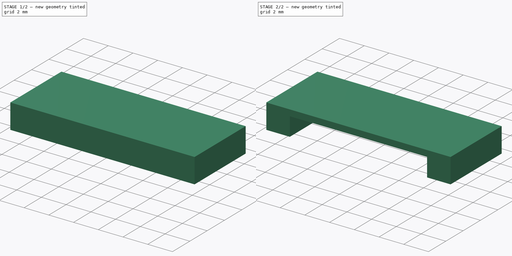
[diagram: build sequence overview — one tinted view per stage of 2, left to right]
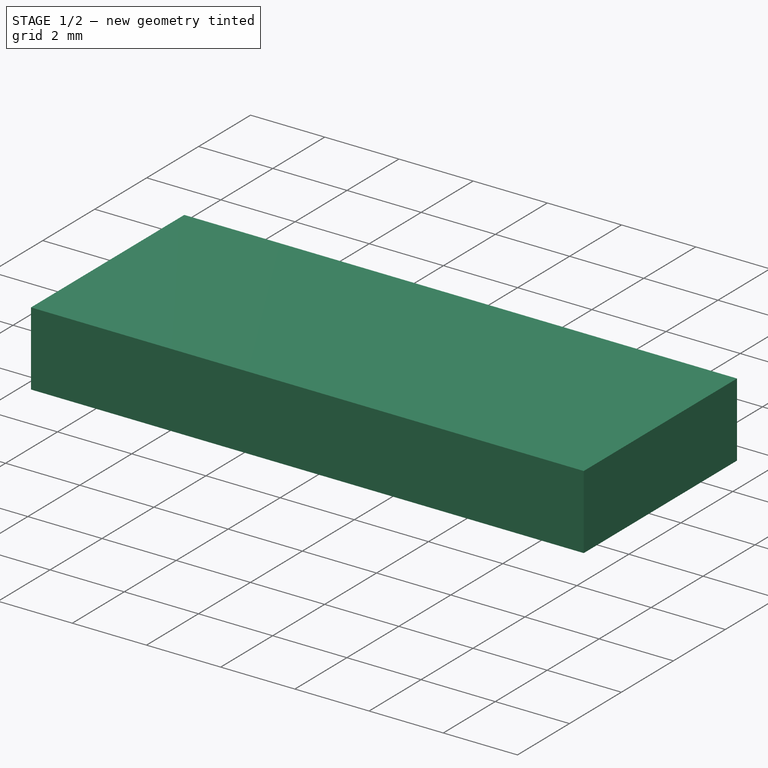
[diagram: stage 1 of 2 — iso view after this stage's code; geometry added in this stage tinted green]
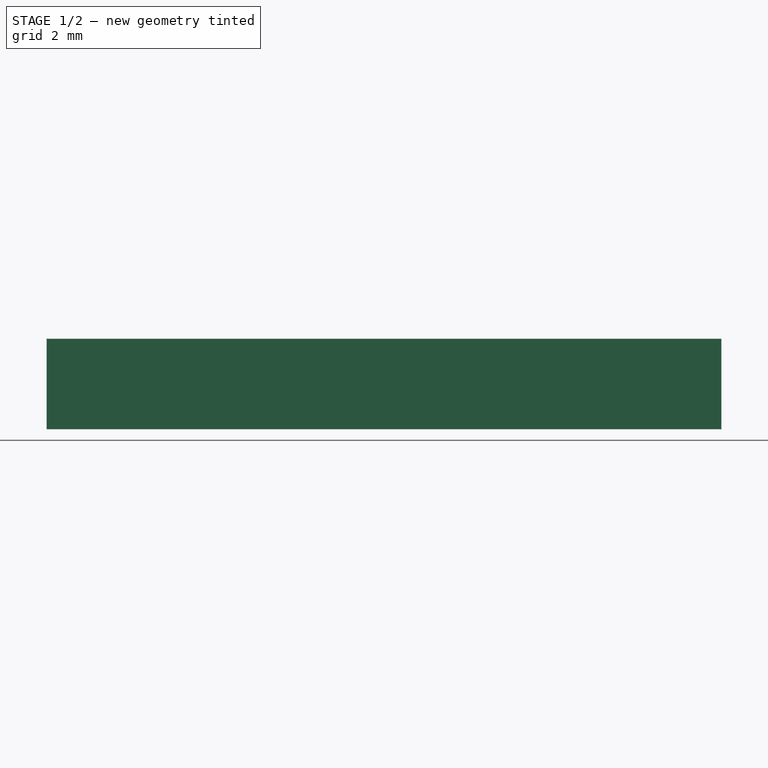
[diagram: stage 1 of 2 — front view after this stage's code; geometry added in this stage tinted green]
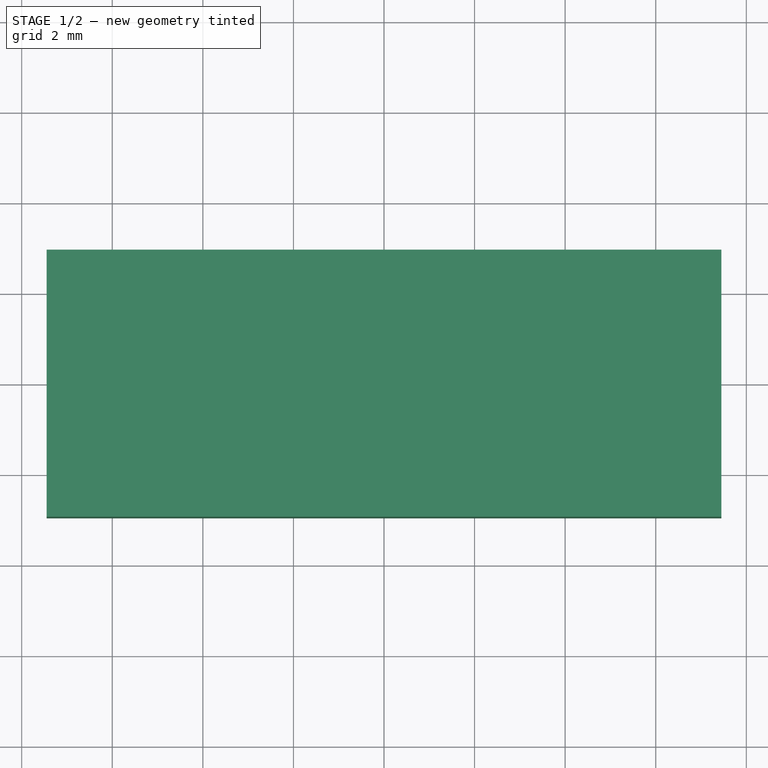
[diagram: stage 1 of 2 — top view after this stage's code; geometry added in this stage tinted green]
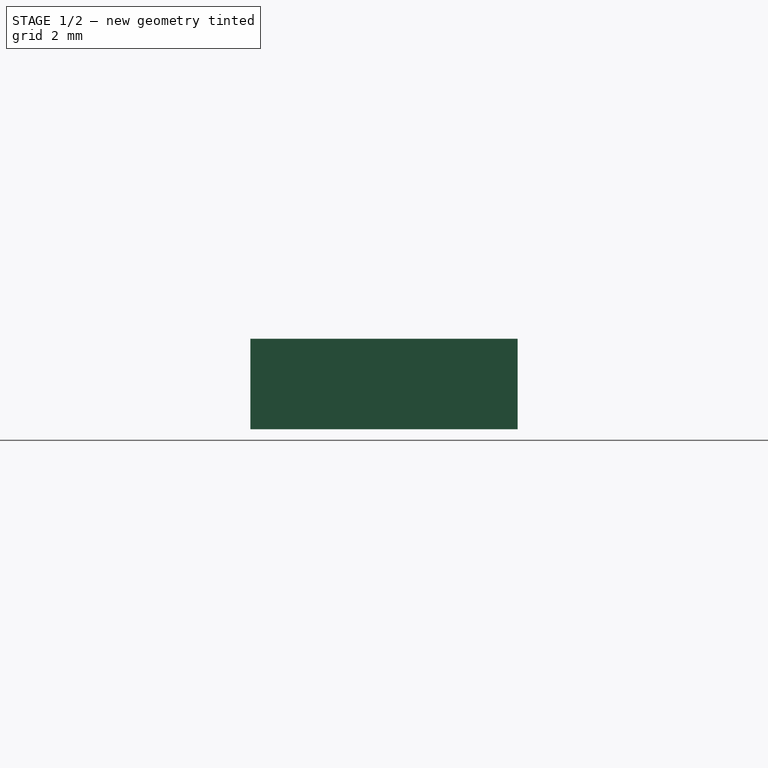
[diagram: stage 1 of 2 — right view after this stage's code; geometry added in this stage tinted green]
FCSTD DOCUMENT  (FreeCAD 0.16R6712 (Git))
Label: PCA-6G-20-HL-3
License: All rights reserved
LicenseURL: http://en.wikipedia.org/wiki/All_rights_reserved
objects: Sketcher::SketchObject×2, PartDesign::Pad×2, Part::Cut×1
note: 7 computed .brp shape members not serialized (recipe doc carries the construction recipe); baked Part::Feature solids carry a one-line shape summary decoded from their .brp

FEATURE [Sketcher::SketchObject] Sketch
  sketch-geometry (4):
    g0: LineSegment StartX=-7.45 StartY=2.95 StartZ=0 EndX=7.45 EndY=2.95 EndZ=0
    g1: LineSegment StartX=7.45 StartY=2.95 StartZ=0 EndX=7.45 EndY=-2.95 EndZ=0
    g2: LineSegment StartX=7.45 StartY=-2.95 StartZ=0 EndX=-7.45 EndY=-2.95 EndZ=0
    g3: LineSegment StartX=-7.45 StartY=-2.95 StartZ=0 EndX=-7.45 EndY=2.95 EndZ=0
  constraints (12):
    c: Coincident(g0,g1)
    c: Coincident(g1,g2)
    c: Coincident(g2,g3)
    c: Coincident(g3,g0)
    c: Horizontal(g0)
    c: Horizontal(g2)
    c: Vertical(g1)
    c: Vertical(g3)
    c: Symmetric(g1,g0,g-1)
    c: Symmetric(g0,g0,g-2)
    c: DistanceX(g0,g0) = 14.9
    c: DistanceY(g3,g3) = 5.9
FEATURE [PartDesign::Pad] Pad  label="korpus"
  Length = 2
  Length2 = 100
  Sketch = -> Sketch
  Type = 0
FEATURE [Sketcher::SketchObject] Sketch001
  sketch-geometry (8):
    g0: LineSegment [constr] StartX=-7.45 StartY=2.95 StartZ=0 EndX=7.45 EndY=2.95 EndZ=0
    g1: LineSegment [constr] StartX=7.45 StartY=2.95 StartZ=0 EndX=7.45 EndY=-2.95 EndZ=0
    g2: LineSegment [constr] StartX=7.45 StartY=-2.95 StartZ=0 EndX=-7.45 EndY=-2.95 EndZ=0
    g3: LineSegment [constr] StartX=-7.45 StartY=-2.95 StartZ=0 EndX=-7.45 EndY=2.95 EndZ=0
    g4: LineSegment StartX=-5.55 StartY=-2.95 StartZ=0 EndX=5.55 EndY=-2.95 EndZ=0
    g5: LineSegment StartX=5.55 StartY=-2.95 StartZ=0 EndX=5.55 EndY=1.05 EndZ=0
    g6: LineSegment StartX=5.55 StartY=1.05 StartZ=0 EndX=-5.55 EndY=1.05 EndZ=0
    g7: LineSegment StartX=-5.55 StartY=1.05 StartZ=0 EndX=-5.55 EndY=-2.95 EndZ=0
  constraints (24):
    c: Coincident(g0,g1)
    c: Coincident(g1,g2)
    c: Coincident(g2,g3)
    c: Coincident(g3,g0)
    c: Horizontal(g0)
    c: Horizontal(g2)
    c: Vertical(g1)
    c: Vertical(g3)
    c: Symmetric(g1,g0,g-1)
    c: Symmetric(g0,g0,g-2)
    c: DistanceX(g0,g0) = 14.9
    c: DistanceY(g3,g3) = 5.9
    c: Coincident(g4,g5)
    c: Coincident(g5,g6)
    c: Coincident(g6,g7)
    c: Coincident(g7,g4)
    c: Horizontal(g4)
    c: Horizontal(g6)
    c: Vertical(g5)
    c: Vertical(g7)
    c: PointOnObject(g4,g2)
    c: Symmetric(g4,g4,g-2)
    c: DistanceX(g4,g4) = 11.1
    c: DistanceY(g5,g5) = 4
FEATURE [PartDesign::Pad] Pad001  label="wyciecie"
  Length = 1.5
  Length2 = 100
  Sketch = -> Sketch001
  Type = 0
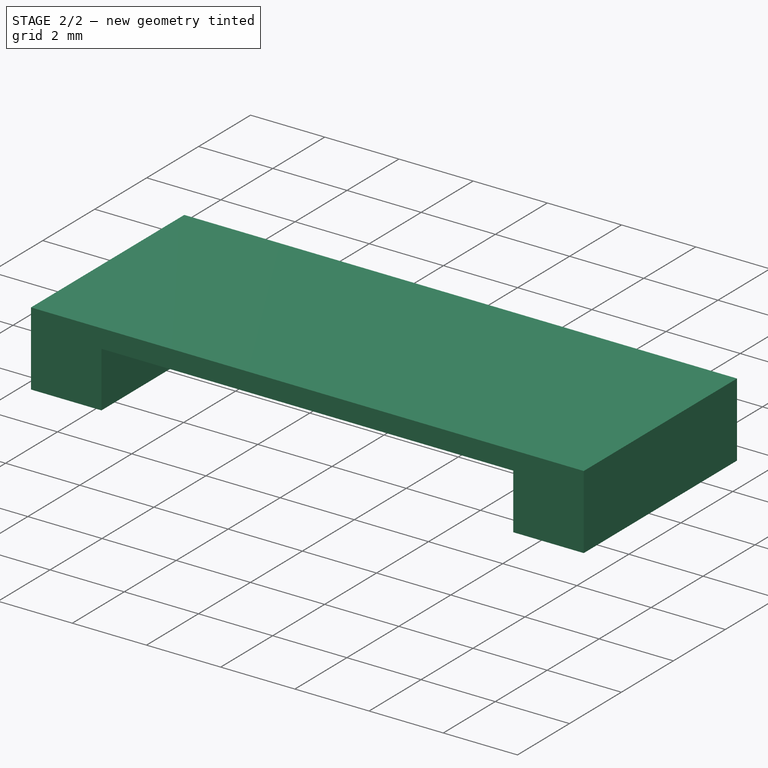
[diagram: stage 2 of 2 — iso view after this stage's code; geometry added in this stage tinted green]
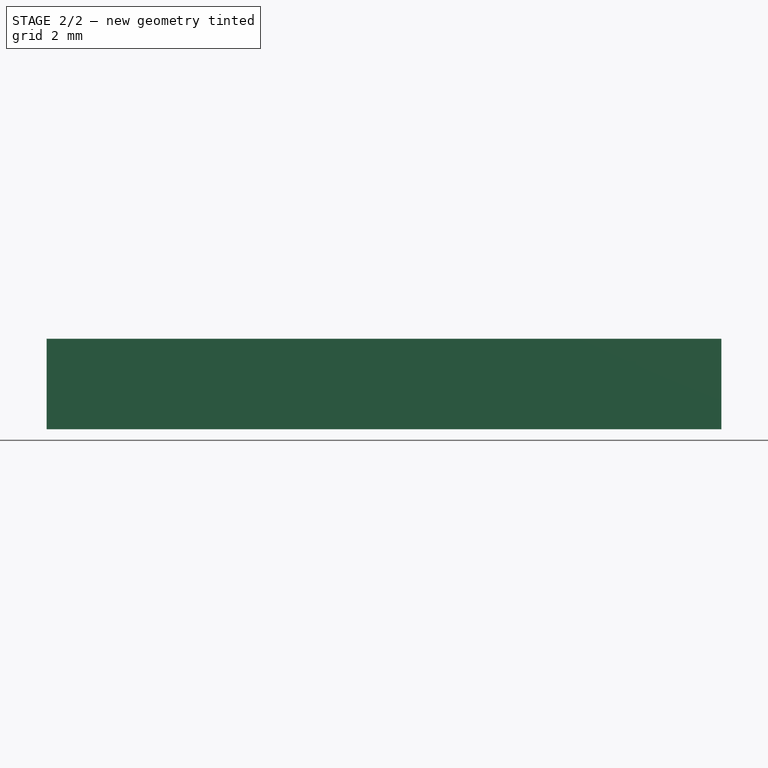
[diagram: stage 2 of 2 — front view after this stage's code; geometry added in this stage tinted green]
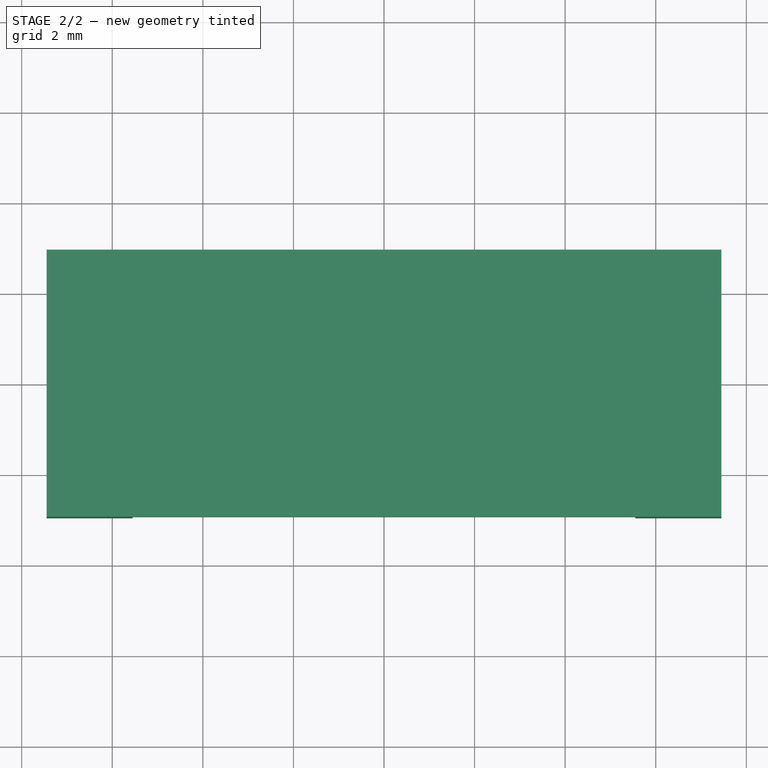
[diagram: stage 2 of 2 — top view after this stage's code; geometry added in this stage tinted green]
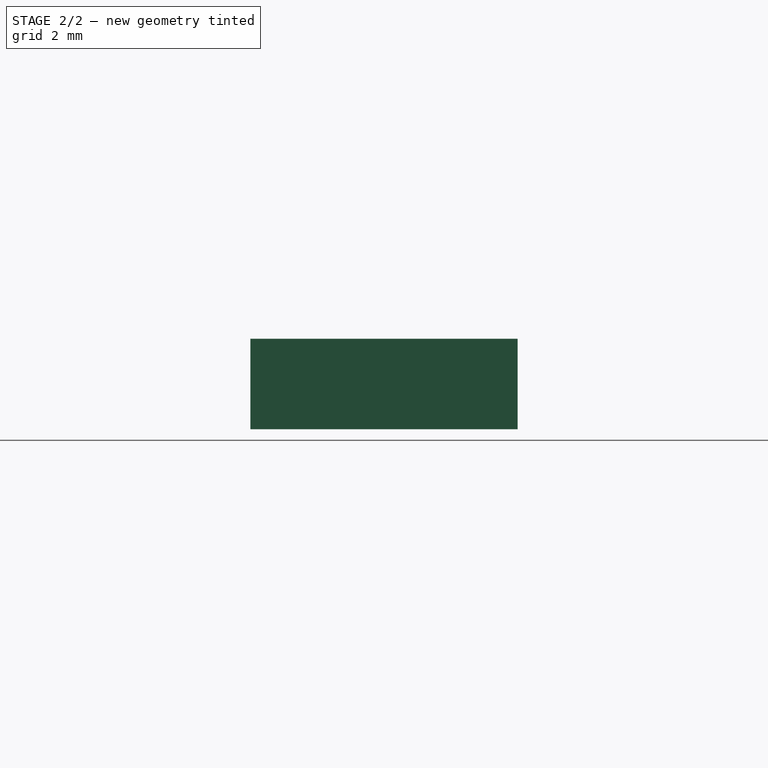
[diagram: stage 2 of 2 — right view after this stage's code; geometry added in this stage tinted green]
FEATURE [Part::Cut] Cut
  Base = -> Pad
  Tool = -> Pad001
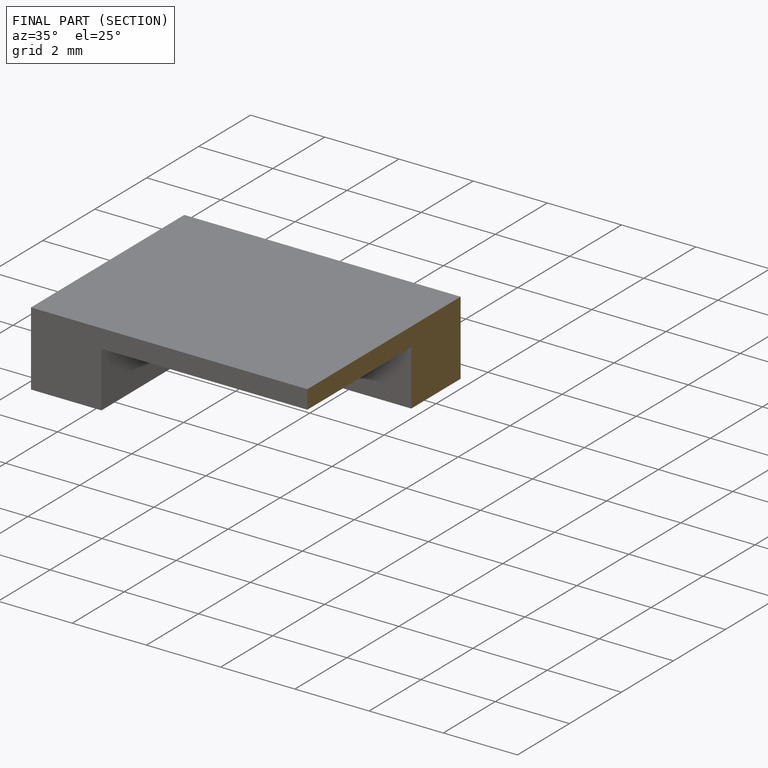
[diagram: finished part — half-section view (interior)]
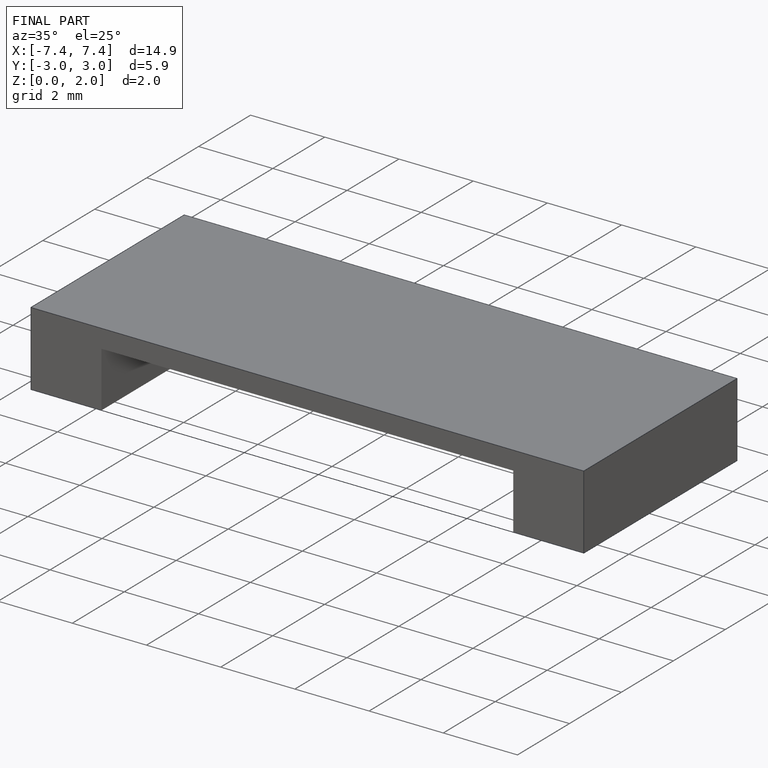
[diagram: finished part — iso view with bounding-box wireframe]
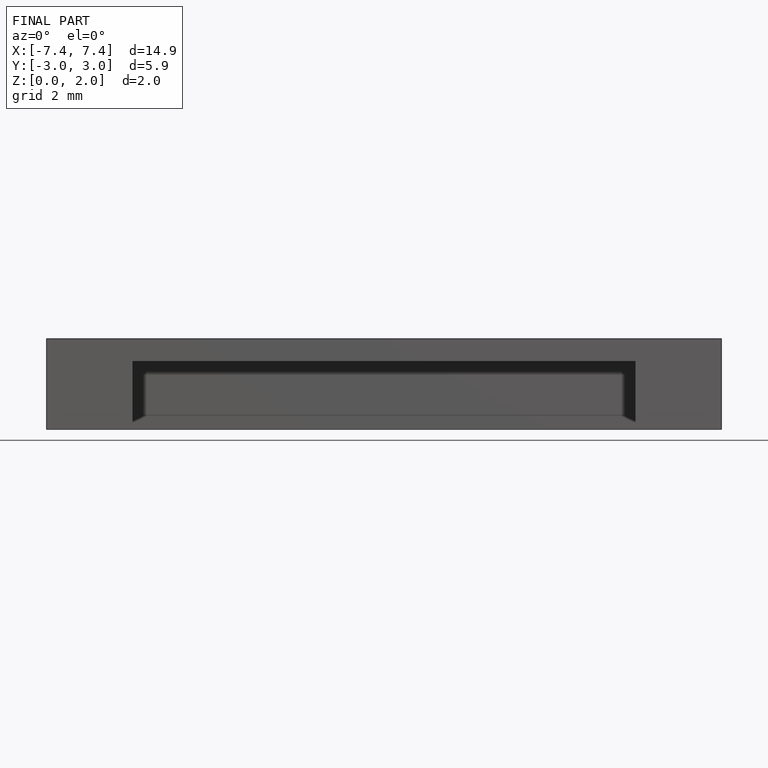
[diagram: finished part — front view with bounding-box wireframe]
